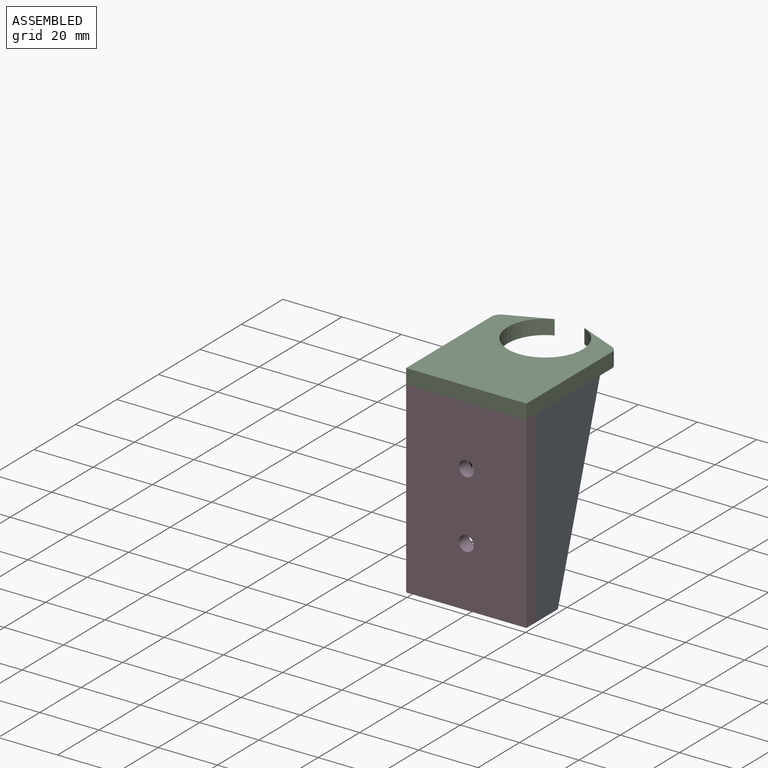
[diagram: assembled view]
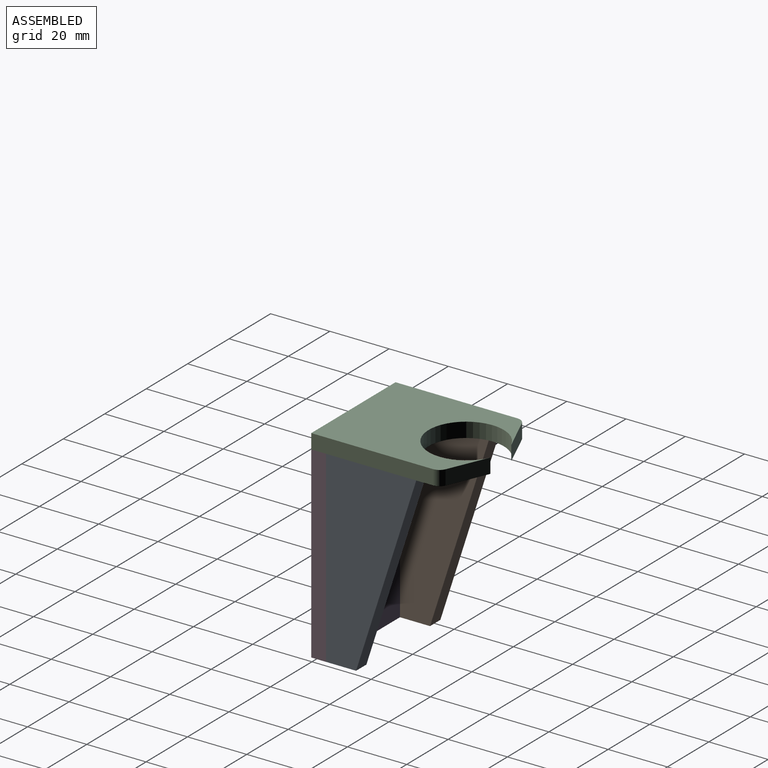
[diagram: assembled view, second angle]
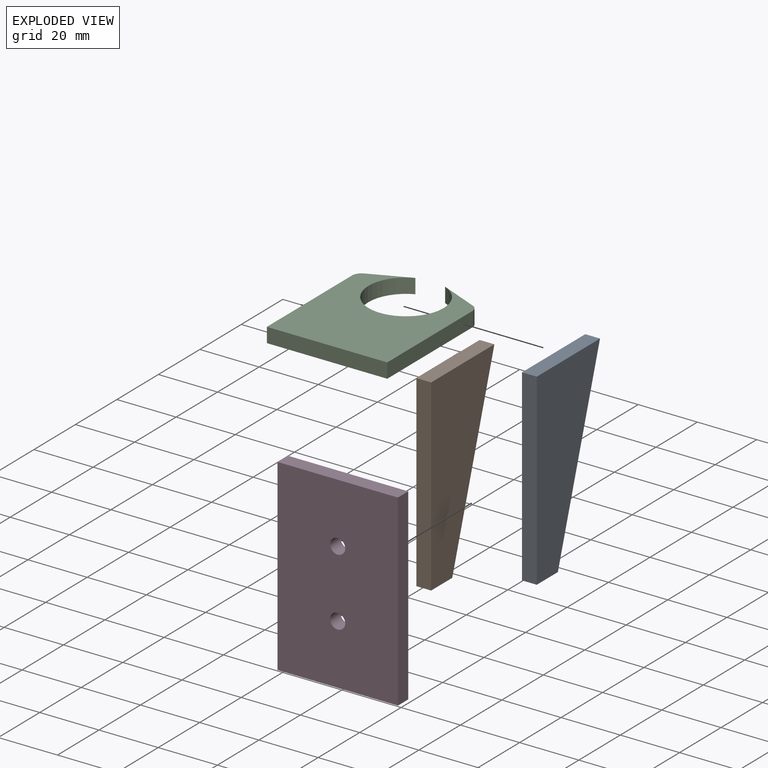
[diagram: exploded view]
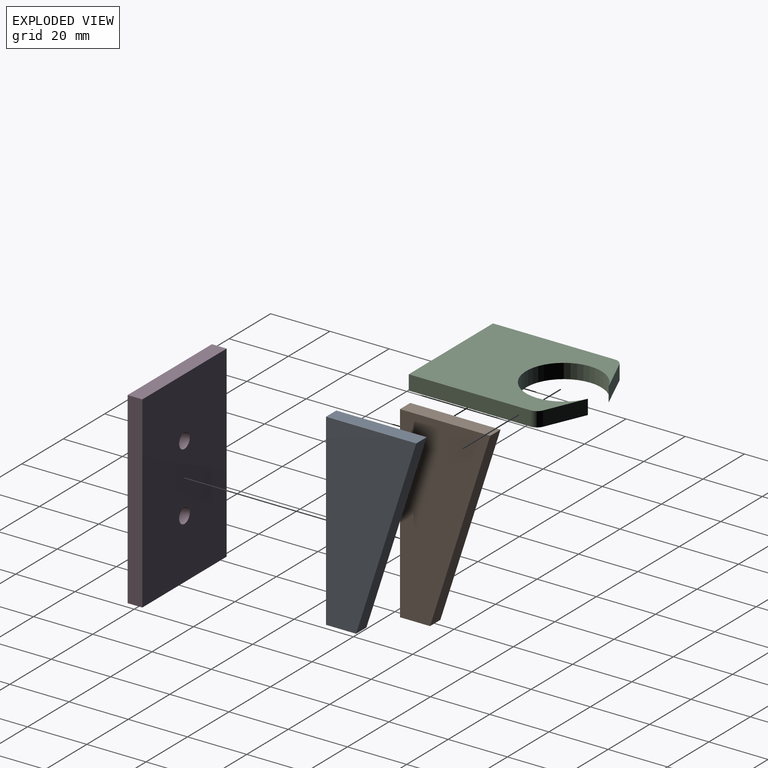
[diagram: exploded view, second angle]
ASSEMBLY  parts=4 mates=6
PART A: 6 faces, bbox 5x30.5x63.5 mm
  f0: plane 63.5x4.98mm, normal (0,-1,0), area 316.1mm2, adj f1,f3,f4,f5
  f1: plane 10.16x4.98mm, normal (0,0,-1), area 50.6mm2, adj f0,f2,f4,f5
  f2: plane 63.5x20.32mm, normal (0,0.95,-0.3), area 331.9mm2, adj f1,f3,f4,f5
  f3: plane 30.48x4.98mm, normal (0,0,1), area 151.7mm2, adj f0,f2,f4,f5
  f4: plane 63.5x30.48mm, normal (1,0,0), area 1290.3mm2, adj f0,f1,f2,f3
  f5: plane 63.5x30.48mm, normal (-1,0,0), area 1290.3mm2, adj f0,f1,f2,f3
PART B: same geometry as A
PART C: 10 faces, bbox 40.6x49.8x5 mm
  f0: plane 41.09x4.98mm, normal (1,0,0), area 204.6mm2, adj f1,f7,f8,f9
  f1: cylinder r=3.17mm len=4.98mm, axis (0,0,-1), area 18.4mm2, adj f0,f2,f8,f9
  f2: plane 13.38x5.76mm, normal (0.4,0.92,0), area 72.5mm2, adj f1,f3,f8,f9
  f3: cylinder r=12.7mm len=25.4mm, axis (0,0,-1), area 345.9mm2, adj f2,f4,f8,f9
  f4: plane 13.38x5.76mm, normal (-0.4,0.92,0), area 72.5mm2, adj f3,f5,f8,f9
  f5: cylinder r=3.17mm len=4.98mm, axis (0,0,-1), area 18.4mm2, adj f4,f6,f8,f9
  f6: plane 41.09x4.98mm, normal (-1,0,0), area 204.6mm2, adj f5,f7,f8,f9
  f7: plane 40.64x4.98mm, normal (0,-1,0), area 202.3mm2, adj f0,f6,f8,f9
  f8: plane 49.77x40.64mm, normal (0,0,1), area 1420.5mm2, adj f0,f1,f2,f3,f4,f5,f6,f7
  f9: plane 49.77x40.64mm, normal (0,0,-1), area 1420.5mm2, adj f0,f1,f2,f3,f4,f5,f6,f7
PART D: 8 faces, bbox 40.6x5x63.5 mm
  f0: plane 63.5x4.98mm, normal (-1,0,0), area 316.1mm2, adj f1,f3,f4,f5
  f1: plane 40.64x4.98mm, normal (0,0,-1), area 202.3mm2, adj f0,f2,f4,f5
  f2: plane 63.5x4.98mm, normal (1,0,0), area 316.1mm2, adj f1,f3,f4,f5
  f3: plane 40.64x4.98mm, normal (0,0,1), area 202.3mm2, adj f0,f2,f4,f5
  f4: plane 63.5x40.64mm, normal (0,-1,0), area 2540.1mm2, adj f0,f1,f2,f3,f6,f7
  f5: plane 63.5x40.64mm, normal (0,1,0), area 2540.1mm2, adj f0,f1,f2,f3,f6,f7
  f6: cylinder r=2.54mm len=5.08mm, axis (0,-1,0), area 79.5mm2, adj f4,f5
  f7: cylinder r=2.54mm len=5.08mm, axis (0,-1,0), area 79.5mm2, adj f4,f5
PLACE A t=(15.34,4.98,-63.5)mm
PLACE B t=(-20.32,4.98,-63.5)mm
PLACE C at identity
PLACE D t=(-20.32,4.98,-63.5)mm
MATE planar A.f1 <-> D.f1  axis (0,0,1) through (20.32,4.98,-63.5)mm
MATE planar D.f0 <-> C.f6  axis (1,0,0) through (-20.32,0,0)mm
MATE planar D.f3 <-> C.f9  axis (0,0,1) through (0,2.49,0)mm
MATE planar A.f0 <-> D.f5  axis (0,-1,0) through (17.83,4.98,-31.75)mm
MATE planar B.f0 <-> D.f5  axis (0,-1,0) through (-17.83,4.98,-31.75)mm
MATE planar B.f1 <-> D.f1  axis (0,0,1) through (-20.32,4.98,-63.5)mm
